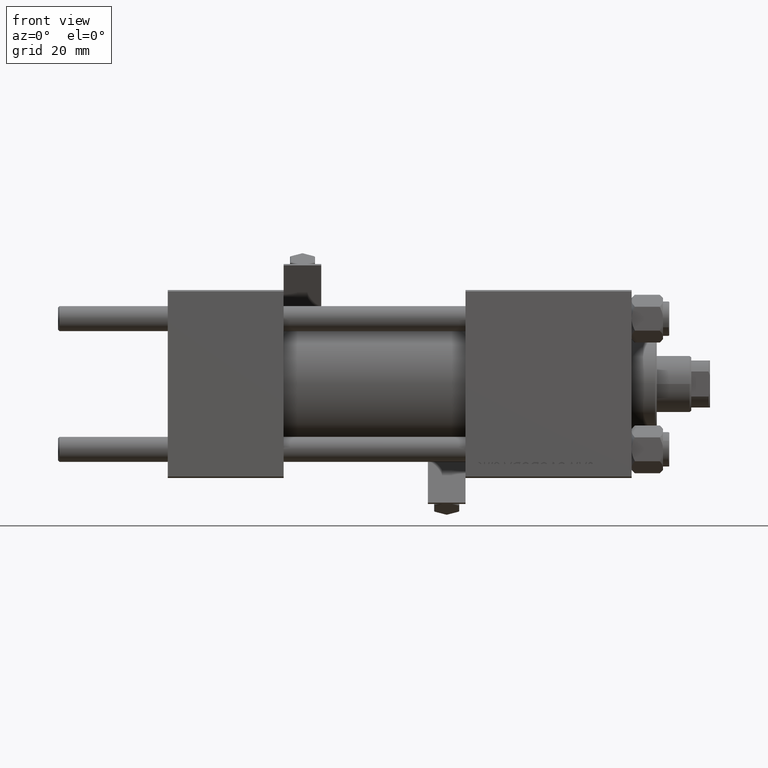
[diagram: clean part render]
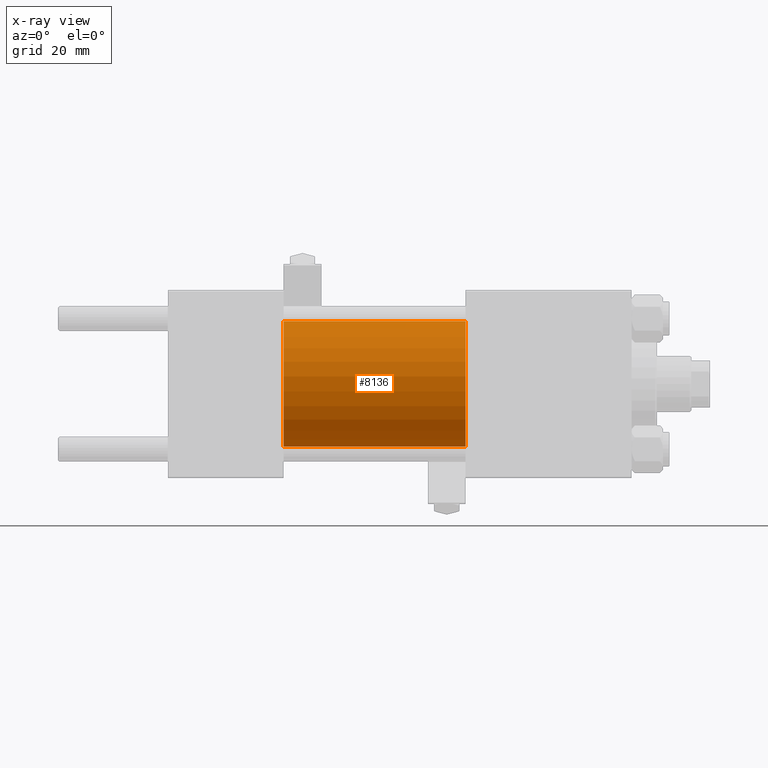
[diagram: x-ray — body ghosted, one internal face saturated and labeled with its STEP entity id]
A machine part, front view, then the same camera in x-ray: the body is ghosted and one INTERNAL B-rep face — a face not visible from any outside direction — is saturated and labeled: STEP entity #8136.
In plain terms, the highlighted cylindrical surface (partial cylindrical patch) has radius 20 mm, axis along (-1, -0, -0).
Its self-contained STEP definition (entity closure, byte-faithful):
#2360 = CARTESIAN_POINT ( 'NONE',  ( 37.00000000000000000, 0.000000000000000000, 20.00000000000000000 ) ) ;
#4763 = CIRCLE ( 'NONE', #25290, 20.00000000000000000 ) ;
#5528 = CARTESIAN_POINT ( 'NONE',  ( 95.00000000000000000, 2.449293598294706119E-15, -20.00000000000000000 ) ) ;
#7602 = DIRECTION ( 'NONE',  ( -1.000000000000000000, -0.000000000000000000, -0.000000000000000000 ) ) ;
#8136 = ADVANCED_FACE ( 'NONE', ( #40207 ), #48705, .F. ) ;
#9839 = CIRCLE ( 'NONE', #10647, 20.00000000000000000 ) ;
#10647 = AXIS2_PLACEMENT_3D ( 'NONE', #25045, #39993, #40750 ) ;
#11253 = AXIS2_PLACEMENT_3D ( 'NONE', #28629, #40705, #20896 ) ;
#11444 = EDGE_LOOP ( 'NONE', ( #36583, #38432, #20704, #44538 ) ) ;
#13416 = CARTESIAN_POINT ( 'NONE',  ( 95.00000000000000000, 0.000000000000000000, 20.00000000000000000 ) ) ;
#15256 = DIRECTION ( 'NONE',  ( 0.000000000000000000, 0.000000000000000000, -1.000000000000000000 ) ) ;
#16284 = CARTESIAN_POINT ( 'NONE',  ( 95.00000000000000000, 0.000000000000000000, 0.000000000000000000 ) ) ;
#18815 = CARTESIAN_POINT ( 'NONE',  ( 95.00000000000000000, 0.000000000000000000, 20.00000000000000000 ) ) ;
#20704 = ORIENTED_EDGE ( 'NONE', *, *, #45231, .F. ) ;
#20738 = VECTOR ( 'NONE', #31975, 1000.000000000000000 ) ;
#20896 = DIRECTION ( 'NONE',  ( 0.000000000000000000, 0.000000000000000000, 1.000000000000000000 ) ) ;
#24076 = CARTESIAN_POINT ( 'NONE',  ( 95.00000000000000000, 2.449293598294706119E-15, -20.00000000000000000 ) ) ;
#25045 = CARTESIAN_POINT ( 'NONE',  ( 37.00000000000000000, 0.000000000000000000, 0.000000000000000000 ) ) ;
#25290 = AXIS2_PLACEMENT_3D ( 'NONE', #16284, #39959, #15256 ) ;
#25641 = VERTEX_POINT ( 'NONE', #5528 ) ;
#27947 = LINE ( 'NONE', #24076, #34316 ) ;
#28629 = CARTESIAN_POINT ( 'NONE',  ( 95.00000000000000000, 0.000000000000000000, 0.000000000000000000 ) ) ;
#31975 = DIRECTION ( 'NONE',  ( -1.000000000000000000, -0.000000000000000000, -0.000000000000000000 ) ) ;
#34316 = VECTOR ( 'NONE', #7602, 1000.000000000000000 ) ;
#34698 = VERTEX_POINT ( 'NONE', #41467 ) ;
#36206 = EDGE_CURVE ( 'NONE', #25641, #34698, #27947, .T. ) ;
#36489 = EDGE_CURVE ( 'NONE', #37510, #25641, #4763, .T. ) ;
#36583 = ORIENTED_EDGE ( 'NONE', *, *, #36489, .T. ) ;
#37510 = VERTEX_POINT ( 'NONE', #18815 ) ;
#38432 = ORIENTED_EDGE ( 'NONE', *, *, #36206, .T. ) ;
#39959 = DIRECTION ( 'NONE',  ( 1.000000000000000000, 0.000000000000000000, 0.000000000000000000 ) ) ;
#39993 = DIRECTION ( 'NONE',  ( 1.000000000000000000, 0.000000000000000000, 0.000000000000000000 ) ) ;
#40207 = FACE_OUTER_BOUND ( 'NONE', #11444, .T. ) ;
#40209 = LINE ( 'NONE', #13416, #20738 ) ;
#40705 = DIRECTION ( 'NONE',  ( -1.000000000000000000, -0.000000000000000000, -0.000000000000000000 ) ) ;
#40750 = DIRECTION ( 'NONE',  ( 0.000000000000000000, 0.000000000000000000, -1.000000000000000000 ) ) ;
#41467 = CARTESIAN_POINT ( 'NONE',  ( 37.00000000000000000, 2.449293598294706119E-15, -20.00000000000000000 ) ) ;
#44538 = ORIENTED_EDGE ( 'NONE', *, *, #50882, .F. ) ;
#45231 = EDGE_CURVE ( 'NONE', #48439, #34698, #9839, .T. ) ;
#48439 = VERTEX_POINT ( 'NONE', #2360 ) ;
#48705 = CYLINDRICAL_SURFACE ( 'NONE', #11253, 20.00000000000000000 ) ;
#50882 = EDGE_CURVE ( 'NONE', #37510, #48439, #40209, .T. ) ;